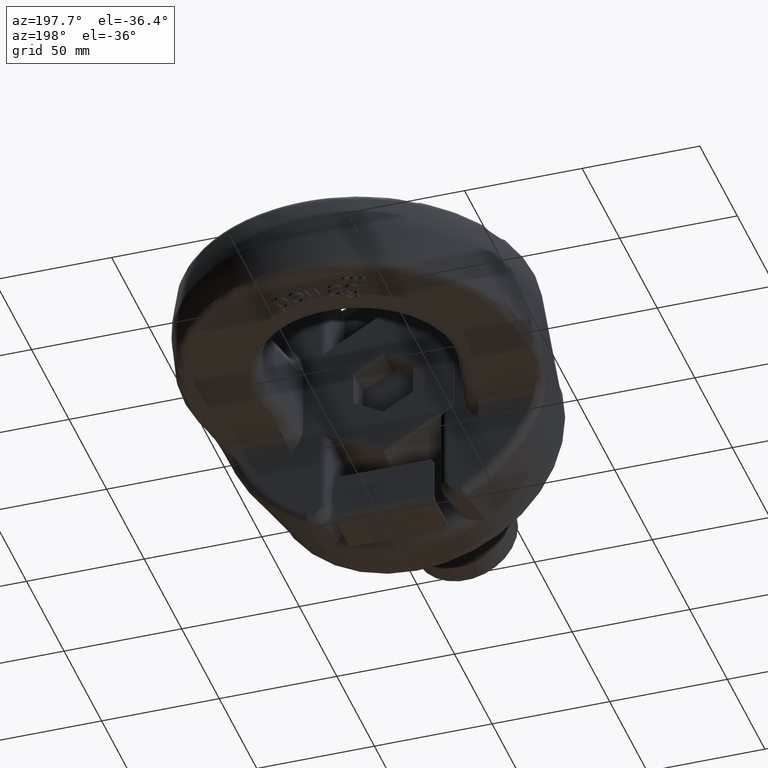
[diagram: clean part render]
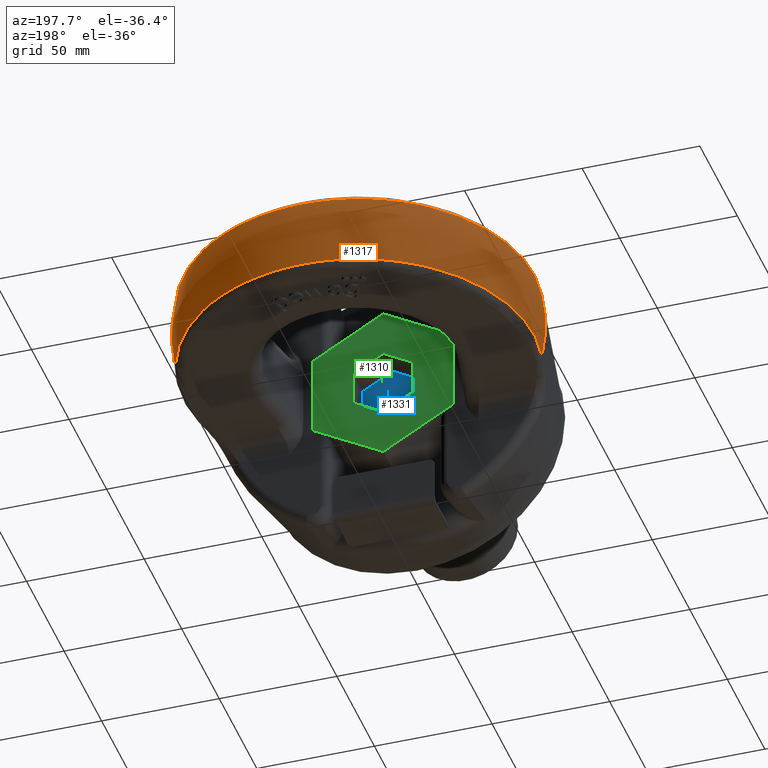
[diagram: same view with three faces highlighted in distinct colors, each labeled with its STEP entity id]
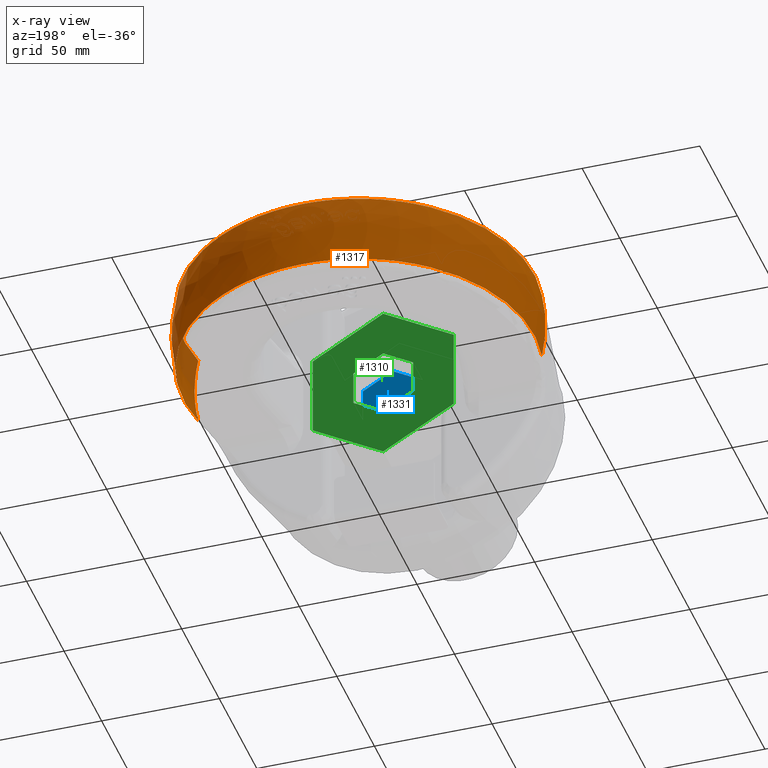
[diagram: x-ray of the same camera — body ghosted, the three highlighted faces saturated]
A machine part, auxiliary view with three faces highlighted in distinct colors.
The next image is the same camera in x-ray (body ghosted, the three faces saturated) — at least one of them is partly hidden behind the body in this view.
Their STEP definitions:

[orange] entity #1317 — the highlighted spherical surface has radius 76 mm.
#1089=SPHERICAL_SURFACE('',#5146,76.);
#1096=FACE_OUTER_BOUND('',#1830,.T.);
#1317=ADVANCED_FACE('',(#1096),#1089,.T.);
#1676=CIRCLE('',#5134,74.5946481153566);
#1680=CIRCLE('',#5138,74.5946481153566);
#1685=CIRCLE('',#5144,74.4815807826943);
#1686=CIRCLE('',#5145,74.4815807826943);
#1830=EDGE_LOOP('',(#2831,#2832,#2833,#2834));
#2831=ORIENTED_EDGE('',*,*,#4372,.F.);
#2832=ORIENTED_EDGE('',*,*,#4393,.T.);
#2833=ORIENTED_EDGE('',*,*,#4382,.F.);
#2834=ORIENTED_EDGE('',*,*,#4394,.T.);
#3982=VERTEX_POINT('',#6756);
#3983=VERTEX_POINT('',#6757);
#3992=VERTEX_POINT('',#6809);
#3993=VERTEX_POINT('',#6811);
#4372=EDGE_CURVE('',#3982,#3983,#1676,.T.);
#4382=EDGE_CURVE('',#3992,#3993,#1680,.T.);
#4393=EDGE_CURVE('',#3982,#3993,#1685,.T.);
#4394=EDGE_CURVE('',#3992,#3983,#1686,.T.);
#5134=AXIS2_PLACEMENT_3D('',#6755,#5481,#5482);
#5138=AXIS2_PLACEMENT_3D('',#6810,#5489,#5490);
#5144=AXIS2_PLACEMENT_3D('',#6866,#5501,#5502);
#5145=AXIS2_PLACEMENT_3D('',#6867,#5503,#5504);
#5146=AXIS2_PLACEMENT_3D('',#6868,#5505,#5506);
#5481=DIRECTION('',(-8.32702619952307E-16,-1.,0.));
#5482=DIRECTION('',(1.,-8.37192033382736E-16,0.));
#5489=DIRECTION('',(-8.32702619952307E-16,-1.,0.));
#5490=DIRECTION('',(1.,-8.37192033382736E-16,0.));
#5501=DIRECTION('',(0.,-1.16620065611886E-16,-1.));
#5502=DIRECTION('',(0.,1.,-1.16453185992252E-16));
#5503=DIRECTION('',(-2.34291072916505E-15,-1.16620065611886E-16,1.));
#5504=DIRECTION('',(-2.48234896088743E-31,1.,1.16453185992252E-16));
#5505=DIRECTION('',(-7.7147027999494E-16,-1.,0.));
#5506=DIRECTION('',(1.,-9.13012355777267E-16,0.));
#6755=CARTESIAN_POINT('',(-7.53993899390729E-14,62.4522004225333,0.));
#6756=CARTESIAN_POINT('',(-73.0470218649802,62.4522004225334,15.1160220994476));
#6757=CARTESIAN_POINT('',(-73.04702186498,62.4522004225333,-15.1160220994477));
#6809=CARTESIAN_POINT('',(73.0470218649802,62.4522004225334,-15.1160220994474));
#6810=CARTESIAN_POINT('',(-7.53993899390729E-14,62.4522004225333,0.));
#6811=CARTESIAN_POINT('',(73.0470218649801,62.4522004225333,15.1160220994475));
#6866=CARTESIAN_POINT('',(-1.38050658413677E-30,77.,15.1160220994475));
#6867=CARTESIAN_POINT('',(3.54154903590916E-14,77.,-15.1160220994475));
#6868=CARTESIAN_POINT('',(-1.38050658413677E-30,77.,0.));

[blue] entity #1331 — the highlighted planar face has unit normal (0, -1, 0).
#1108=FACE_OUTER_BOUND('',#1846,.T.);
#1331=ADVANCED_FACE('',(#1108),#1566,.F.);
#1566=PLANE('',#5170);
#1846=EDGE_LOOP('',(#2893,#2894,#2895,#2896,#2897,#2898));
#2161=LINE('',#6911,#2441);
#2163=LINE('',#6915,#2443);
#2165=LINE('',#6919,#2445);
#2168=LINE('',#6925,#2448);
#2169=LINE('',#6927,#2449);
#2170=LINE('',#6929,#2450);
#2441=VECTOR('',#5557,1.);
#2443=VECTOR('',#5561,1.);
#2445=VECTOR('',#5565,1.);
#2448=VECTOR('',#5570,1.);
#2449=VECTOR('',#5573,1.);
#2450=VECTOR('',#5574,1.);
#2893=ORIENTED_EDGE('',*,*,#4424,.T.);
#2894=ORIENTED_EDGE('',*,*,#4425,.T.);
#2895=ORIENTED_EDGE('',*,*,#4426,.T.);
#2896=ORIENTED_EDGE('',*,*,#4421,.T.);
#2897=ORIENTED_EDGE('',*,*,#4419,.T.);
#2898=ORIENTED_EDGE('',*,*,#4417,.T.);
#4013=VERTEX_POINT('',#6910);
#4014=VERTEX_POINT('',#6912);
#4015=VERTEX_POINT('',#6916);
#4016=VERTEX_POINT('',#6920);
#4017=VERTEX_POINT('',#6924);
#4018=VERTEX_POINT('',#6928);
#4417=EDGE_CURVE('',#4014,#4013,#2161,.T.);
#4419=EDGE_CURVE('',#4015,#4014,#2163,.T.);
#4421=EDGE_CURVE('',#4016,#4015,#2165,.T.);
#4424=EDGE_CURVE('',#4013,#4017,#2168,.T.);
#4425=EDGE_CURVE('',#4017,#4018,#2169,.T.);
#4426=EDGE_CURVE('',#4018,#4016,#2170,.T.);
#5170=AXIS2_PLACEMENT_3D('',#6930,#5575,#5576);
#5557=DIRECTION('',(0.86602540378444,0.,-0.499999999999998));
#5561=DIRECTION('',(0.86602540378444,0.,0.499999999999998));
#5565=DIRECTION('',(-2.36584976179081E-16,0.,1.));
#5570=DIRECTION('',(-2.36584976179081E-16,0.,-1.));
#5573=DIRECTION('',(-0.866025403784439,0.,-0.5));
#5574=DIRECTION('',(-0.866025403784441,0.,0.499999999999996));
#5575=DIRECTION('',(0.,-1.,0.));
#5576=DIRECTION('',(0.,0.,-1.));
#6910=CARTESIAN_POINT('',(12.7,32.3,7.33234841870824));
#6911=CARTESIAN_POINT('',(12.7,32.3,7.33234841870824));
#6912=CARTESIAN_POINT('',(0.,32.3,14.6646968374164));
#6915=CARTESIAN_POINT('',(0.,32.3,14.6646968374164));
#6916=CARTESIAN_POINT('',(-12.7,32.3,7.33234841870824));
#6919=CARTESIAN_POINT('',(-12.7,32.3,7.33234841870824));
#6920=CARTESIAN_POINT('',(-12.7,32.3,-7.33234841870827));
#6924=CARTESIAN_POINT('',(12.7,32.3,-7.33234841870821));
#6925=CARTESIAN_POINT('',(12.7,32.3,-7.33234841870824));
#6927=CARTESIAN_POINT('',(3.43580755603357E-14,32.3,-14.6646968374164));
#6928=CARTESIAN_POINT('',(3.43580755603357E-14,32.3,-14.6646968374164));
#6929=CARTESIAN_POINT('',(-12.7,32.3,-7.33234841870827));
#6930=CARTESIAN_POINT('',(0.,32.3,0.));

[green] entity #1310 — the highlighted planar face has unit normal (0, -1, 0).
#1310=ADVANCED_FACE('',(#1765,#1766),#1549,.F.);
#1549=PLANE('',#5123);
#1765=FACE_BOUND('',#1821,.T.);
#1766=FACE_BOUND('',#1822,.T.);
#1821=EDGE_LOOP('',(#2755,#2756,#2757,#2758,#2759,#2760));
#1822=EDGE_LOOP('',(#2761,#2762,#2763,#2764,#2765,#2766));
#2113=LINE('',#6529,#2393);
#2114=LINE('',#6532,#2394);
#2115=LINE('',#6534,#2395);
#2116=LINE('',#6536,#2396);
#2117=LINE('',#6538,#2397);
#2118=LINE('',#6540,#2398);
#2119=LINE('',#6541,#2399);
#2120=LINE('',#6544,#2400);
#2121=LINE('',#6546,#2401);
#2122=LINE('',#6548,#2402);
#2123=LINE('',#6550,#2403);
#2124=LINE('',#6552,#2404);
#2393=VECTOR('',#5423,1.);
#2394=VECTOR('',#5424,1.);
#2395=VECTOR('',#5425,1.);
#2396=VECTOR('',#5426,1.);
#2397=VECTOR('',#5427,1.);
#2398=VECTOR('',#5428,1.);
#2399=VECTOR('',#5429,1.);
#2400=VECTOR('',#5430,1.);
#2401=VECTOR('',#5431,1.);
#2402=VECTOR('',#5432,1.);
#2403=VECTOR('',#5433,1.);
#2404=VECTOR('',#5434,1.);
#2755=ORIENTED_EDGE('',*,*,#4319,.F.);
#2756=ORIENTED_EDGE('',*,*,#4320,.F.);
#2757=ORIENTED_EDGE('',*,*,#4321,.F.);
#2758=ORIENTED_EDGE('',*,*,#4322,.F.);
#2759=ORIENTED_EDGE('',*,*,#4323,.F.);
#2760=ORIENTED_EDGE('',*,*,#4324,.F.);
#2761=ORIENTED_EDGE('',*,*,#4325,.F.);
#2762=ORIENTED_EDGE('',*,*,#4326,.F.);
#2763=ORIENTED_EDGE('',*,*,#4327,.F.);
#2764=ORIENTED_EDGE('',*,*,#4328,.F.);
#2765=ORIENTED_EDGE('',*,*,#4329,.F.);
#2766=ORIENTED_EDGE('',*,*,#4330,.F.);
#3931=VERTEX_POINT('',#6530);
#3932=VERTEX_POINT('',#6531);
#3933=VERTEX_POINT('',#6533);
#3934=VERTEX_POINT('',#6535);
#3935=VERTEX_POINT('',#6537);
#3936=VERTEX_POINT('',#6539);
#3937=VERTEX_POINT('',#6542);
#3938=VERTEX_POINT('',#6543);
#3939=VERTEX_POINT('',#6545);
#3940=VERTEX_POINT('',#6547);
#3941=VERTEX_POINT('',#6549);
#3942=VERTEX_POINT('',#6551);
#4319=EDGE_CURVE('',#3931,#3932,#2113,.T.);
#4320=EDGE_CURVE('',#3933,#3931,#2114,.T.);
#4321=EDGE_CURVE('',#3934,#3933,#2115,.T.);
#4322=EDGE_CURVE('',#3935,#3934,#2116,.T.);
#4323=EDGE_CURVE('',#3936,#3935,#2117,.T.);
#4324=EDGE_CURVE('',#3932,#3936,#2118,.T.);
#4325=EDGE_CURVE('',#3937,#3938,#2119,.T.);
#4326=EDGE_CURVE('',#3939,#3937,#2120,.T.);
#4327=EDGE_CURVE('',#3940,#3939,#2121,.T.);
#4328=EDGE_CURVE('',#3941,#3940,#2122,.T.);
#4329=EDGE_CURVE('',#3942,#3941,#2123,.T.);
#4330=EDGE_CURVE('',#3938,#3942,#2124,.T.);
#5123=AXIS2_PLACEMENT_3D('',#6553,#5435,#5436);
#5423=DIRECTION('',(0.,0.,1.));
#5424=DIRECTION('',(0.866025403784437,0.,0.500000000000003));
#5425=DIRECTION('',(0.866025403784439,0.,-0.499999999999999));
#5426=DIRECTION('',(0.,0.,-1.));
#5427=DIRECTION('',(-0.866025403784438,0.,-0.500000000000001));
#5428=DIRECTION('',(-0.866025403784438,0.,0.500000000000001));
#5429=DIRECTION('',(-0.866025403784439,0.,-0.5));
#5430=DIRECTION('',(-2.36584976179081E-16,0.,-1.));
#5431=DIRECTION('',(0.86602540378444,0.,-0.499999999999998));
#5432=DIRECTION('',(0.86602540378444,0.,0.499999999999998));
#5433=DIRECTION('',(-2.36584976179081E-16,0.,1.));
#5434=DIRECTION('',(-0.866025403784441,0.,0.499999999999996));
#5435=DIRECTION('',(0.,-1.,0.));
#5436=DIRECTION('',(0.,0.,-1.));
#6529=CARTESIAN_POINT('',(30.,45.,-17.3205080756887));
#6530=CARTESIAN_POINT('',(30.,45.,-17.3205080756887));
#6531=CARTESIAN_POINT('',(30.,45.,17.3205080756887));
#6532=CARTESIAN_POINT('',(8.47135220890427E-14,45.,-34.6410161513775));
#6533=CARTESIAN_POINT('',(8.46302553621958E-14,45.,-34.6410161513775));
#6534=CARTESIAN_POINT('',(-30.,45.,-17.3205080756888));
#6535=CARTESIAN_POINT('',(-30.,45.,-17.3205080756888));
#6536=CARTESIAN_POINT('',(-30.,45.,17.3205080756887));
#6537=CARTESIAN_POINT('',(-30.,45.,17.3205080756887));
#6538=CARTESIAN_POINT('',(-3.5527136788005E-15,45.,34.6410161513775));
#6539=CARTESIAN_POINT('',(-3.46944695195361E-15,45.,34.6410161513775));
#6540=CARTESIAN_POINT('',(30.,45.,17.3205080756887));
#6541=CARTESIAN_POINT('',(3.43580755603357E-14,45.,-14.6646968374164));
#6542=CARTESIAN_POINT('',(12.7,45.,-7.33234841870821));
#6543=CARTESIAN_POINT('',(3.43580755603357E-14,45.,-14.6646968374164));
#6544=CARTESIAN_POINT('',(12.7,45.,-7.33234841870824));
#6545=CARTESIAN_POINT('',(12.7,45.,7.33234841870824));
#6546=CARTESIAN_POINT('',(12.7,45.,7.33234841870824));
#6547=CARTESIAN_POINT('',(0.,45.,14.6646968374164));
#6548=CARTESIAN_POINT('',(0.,45.,14.6646968374164));
#6549=CARTESIAN_POINT('',(-12.7,45.,7.33234841870824));
#6550=CARTESIAN_POINT('',(-12.7,45.,7.33234841870824));
#6551=CARTESIAN_POINT('',(-12.7,45.,-7.33234841870827));
#6552=CARTESIAN_POINT('',(-12.7,45.,-7.33234841870827));
#6553=CARTESIAN_POINT('',(0.,45.,0.));